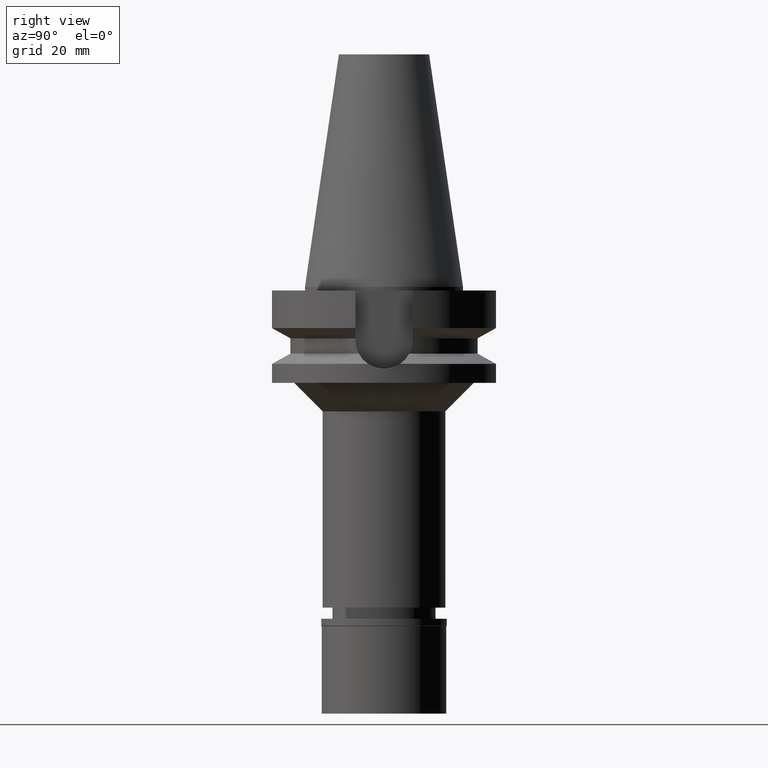
[diagram: clean part render]
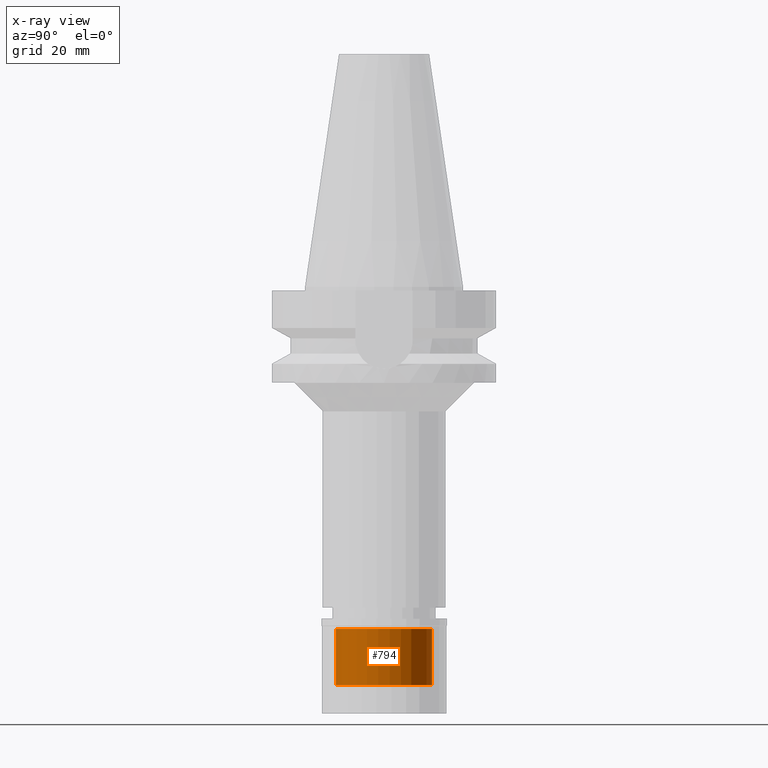
[diagram: x-ray — body ghosted, one internal face saturated and labeled with its STEP entity id]
A machine part, right view, then the same camera in x-ray: the body is ghosted and one INTERNAL B-rep face — a face not visible from any outside direction — is saturated and labeled: STEP entity #794.
In plain terms, the highlighted cylindrical surface (partial cylindrical patch) has radius 13.5 mm, axis along (0, 0, -1).
Its self-contained STEP definition (entity closure, byte-faithful):
#20 = CARTESIAN_POINT ( 'NONE',  ( 0.0000000000000000000, 13.50000000000000000, -2.899999999999999911 ) ) ;
#97 = ORIENTED_EDGE ( 'NONE', *, *, #1872, .T. ) ;
#143 = CARTESIAN_POINT ( 'NONE',  ( 0.0000000000000000000, 13.50000000000000000, -18.70000000000000284 ) ) ;
#200 = VERTEX_POINT ( 'NONE', #20 ) ;
#518 = DIRECTION ( 'NONE',  ( 0.0000000000000000000, 1.000000000000000000, 0.0000000000000000000 ) ) ;
#571 = VERTEX_POINT ( 'NONE', #2220 ) ;
#576 = AXIS2_PLACEMENT_3D ( 'NONE', #712, #913, #1658 ) ;
#591 = LINE ( 'NONE', #143, #1069 ) ;
#593 = VERTEX_POINT ( 'NONE', #3047 ) ;
#712 = CARTESIAN_POINT ( 'NONE',  ( 0.0000000000000000000, 0.0000000000000000000, 0.0000000000000000000 ) ) ;
#794 = ADVANCED_FACE ( 'NONE', ( #1864 ), #1217, .F. ) ;
#877 = DIRECTION ( 'NONE',  ( 0.0000000000000000000, 0.0000000000000000000, 1.000000000000000000 ) ) ;
#913 = DIRECTION ( 'NONE',  ( 0.0000000000000000000, 0.0000000000000000000, -1.000000000000000000 ) ) ;
#931 = DIRECTION ( 'NONE',  ( 0.0000000000000000000, -1.000000000000000000, 0.0000000000000000000 ) ) ;
#991 = CIRCLE ( 'NONE', #2450, 13.50000000000000000 ) ;
#1069 = VECTOR ( 'NONE', #877, 1000.000000000000000 ) ;
#1187 = DIRECTION ( 'NONE',  ( 0.0000000000000000000, 0.0000000000000000000, 1.000000000000000000 ) ) ;
#1217 = CYLINDRICAL_SURFACE ( 'NONE', #576, 13.50000000000000000 ) ;
#1327 = EDGE_CURVE ( 'NONE', #593, #200, #591, .T. ) ;
#1344 = LINE ( 'NONE', #3001, #2847 ) ;
#1404 = EDGE_LOOP ( 'NONE', ( #3033, #1683, #97, #2036 ) ) ;
#1423 = DIRECTION ( 'NONE',  ( 0.0000000000000000000, 0.0000000000000000000, -1.000000000000000000 ) ) ;
#1546 = CIRCLE ( 'NONE', #2958, 13.50000000000000000 ) ;
#1658 = DIRECTION ( 'NONE',  ( 0.0000000000000000000, -1.000000000000000000, 0.0000000000000000000 ) ) ;
#1664 = VERTEX_POINT ( 'NONE', #2374 ) ;
#1683 = ORIENTED_EDGE ( 'NONE', *, *, #2062, .T. ) ;
#1712 = CARTESIAN_POINT ( 'NONE',  ( 0.0000000000000000000, 0.0000000000000000000, -2.899999999999999911 ) ) ;
#1864 = FACE_OUTER_BOUND ( 'NONE', #1404, .T. ) ;
#1872 = EDGE_CURVE ( 'NONE', #1664, #200, #1546, .T. ) ;
#1900 = EDGE_CURVE ( 'NONE', #593, #571, #991, .T. ) ;
#2036 = ORIENTED_EDGE ( 'NONE', *, *, #1327, .F. ) ;
#2062 = EDGE_CURVE ( 'NONE', #571, #1664, #1344, .T. ) ;
#2071 = DIRECTION ( 'NONE',  ( 0.0000000000000000000, 0.0000000000000000000, 1.000000000000000000 ) ) ;
#2220 = CARTESIAN_POINT ( 'NONE',  ( 0.0000000000000000000, -13.50000000000000000, -18.70000000000000284 ) ) ;
#2374 = CARTESIAN_POINT ( 'NONE',  ( 0.0000000000000000000, -13.50000000000000000, -2.899999999999999911 ) ) ;
#2450 = AXIS2_PLACEMENT_3D ( 'NONE', #2877, #1423, #518 ) ;
#2847 = VECTOR ( 'NONE', #2071, 1000.000000000000000 ) ;
#2877 = CARTESIAN_POINT ( 'NONE',  ( 0.0000000000000000000, 0.0000000000000000000, -18.70000000000000284 ) ) ;
#2958 = AXIS2_PLACEMENT_3D ( 'NONE', #1712, #1187, #931 ) ;
#3001 = CARTESIAN_POINT ( 'NONE',  ( 0.0000000000000000000, -13.50000000000000000, -18.70000000000000284 ) ) ;
#3033 = ORIENTED_EDGE ( 'NONE', *, *, #1900, .T. ) ;
#3047 = CARTESIAN_POINT ( 'NONE',  ( 0.0000000000000000000, 13.50000000000000000, -18.70000000000000284 ) ) ;